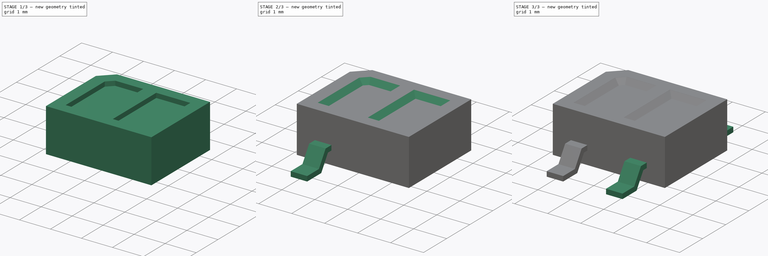
[diagram: build sequence overview — one tinted view per stage of 3, left to right]
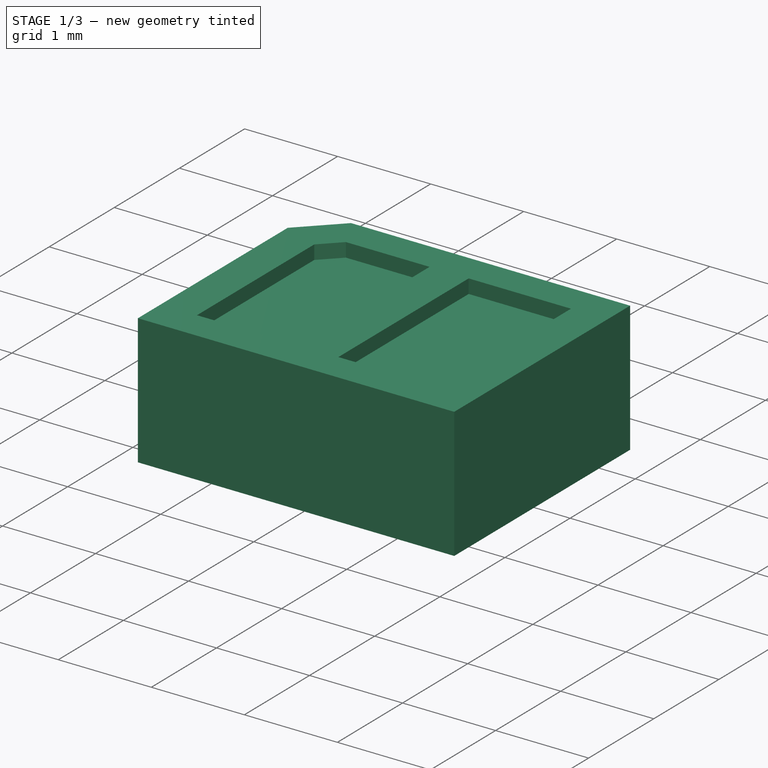
[diagram: stage 1 of 3 — iso view after this stage's code; geometry added in this stage tinted green]
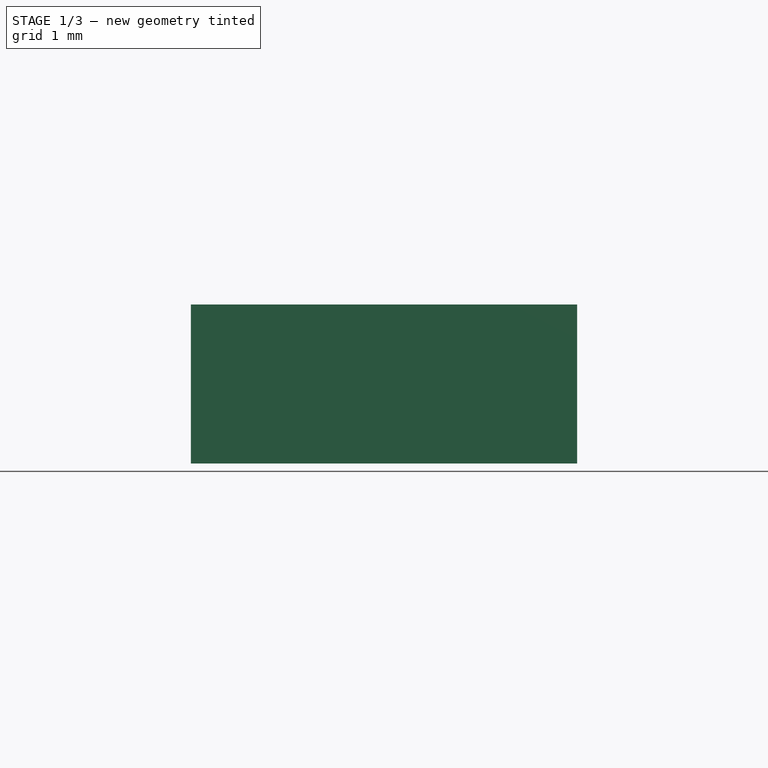
[diagram: stage 1 of 3 — front view after this stage's code; geometry added in this stage tinted green]
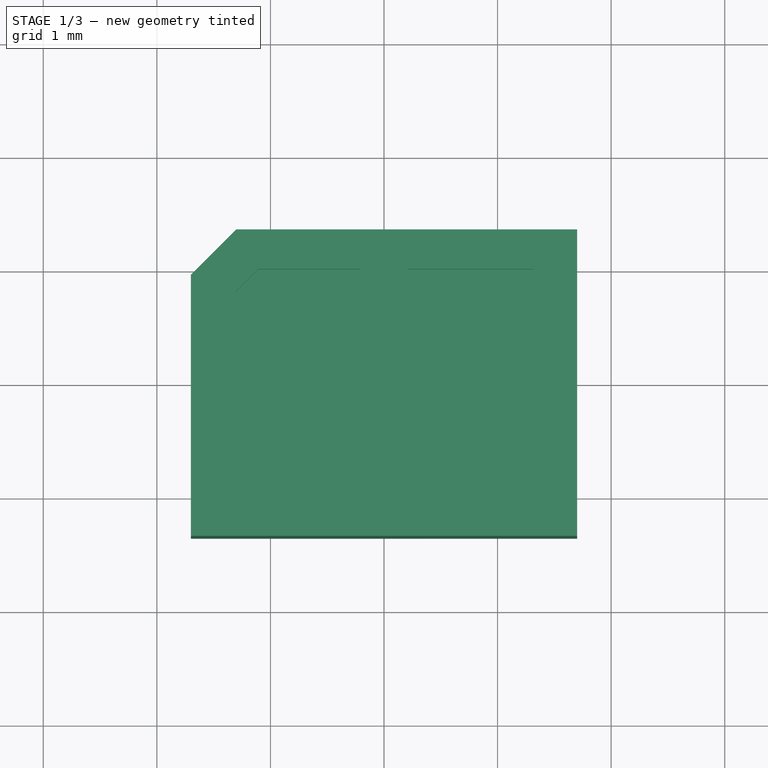
[diagram: stage 1 of 3 — top view after this stage's code; geometry added in this stage tinted green]
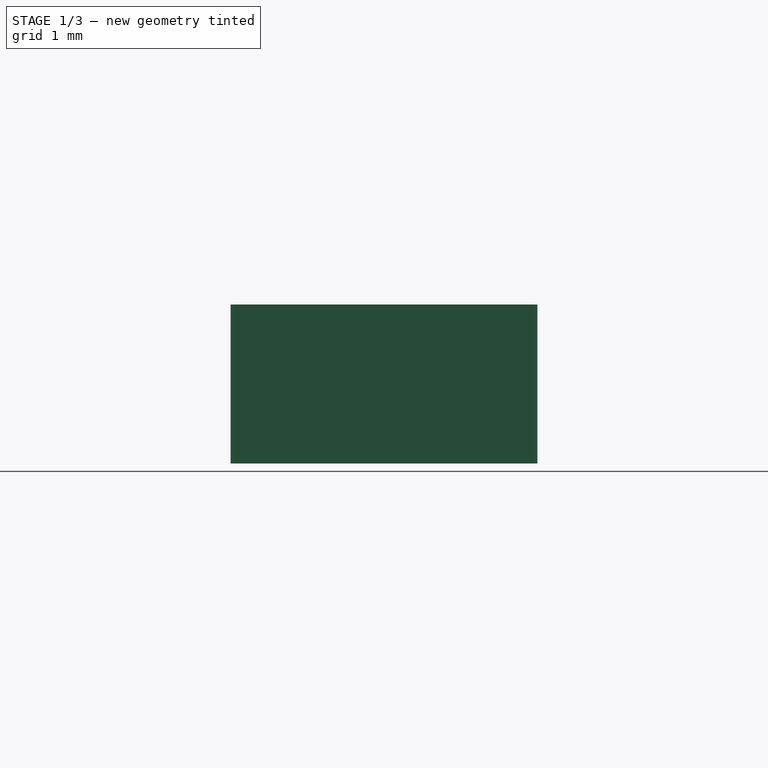
[diagram: stage 1 of 3 — right view after this stage's code; geometry added in this stage tinted green]
FCSTD DOCUMENT  (FreeCAD 0.16R6712 (Git))
Label: OnSemi_CASE100CY
License: All rights reserved
LicenseURL: http://en.wikipedia.org/wiki/All_rights_reserved
objects: Sketcher::SketchObject×4, PartDesign::Pad×3, Part::Feature×3, PartDesign::Pocket×1, PartDesign::Chamfer×1, Part::MultiFuse×1, App::DocumentObjectGroup×1
note: 17 computed .brp shape members not serialized (recipe doc carries the construction recipe); baked Part::Feature solids carry a one-line shape summary decoded from their .brp

FEATURE [Sketcher::SketchObject] Sketch
  Placement = pos=(0,0,0.45) rot=(0,0,1;0rad)
  sketch-geometry (7):
    g0: LineSegment StartX=-1.3 StartY=1.35 StartZ=0 EndX=1.7 EndY=1.35 EndZ=0
    g1: LineSegment StartX=1.7 StartY=1.35 StartZ=0 EndX=1.7 EndY=-1.35 EndZ=0
    g2: LineSegment StartX=1.7 StartY=-1.35 StartZ=0 EndX=-1.7 EndY=-1.35 EndZ=0
    g3: LineSegment StartX=-1.7 StartY=-1.35 StartZ=0 EndX=-1.7 EndY=0.95 EndZ=0
    g4: LineSegment StartX=-1.7 StartY=0.95 StartZ=0 EndX=-1.3 EndY=1.35 EndZ=0
    g5: LineSegment [constr] StartX=-1.7 StartY=0 StartZ=0 EndX=1.7 EndY=0 EndZ=0
    g6: LineSegment [constr] StartX=0 StartY=1.35 StartZ=0 EndX=0 EndY=-1.35 EndZ=0
  constraints (23):
    c: Coincident(g0,g1)
    c: Coincident(g1,g2)
    c: Coincident(g2,g3)
    c: Horizontal(g0)
    c: Horizontal(g2)
    c: Vertical(g1)
    c: Vertical(g3)
    c: PointOnObject(g4,g3)
    c: PointOnObject(g4,g0)
    c: Coincident(g0,g4)
    c: Coincident(g3,g4)
    c: Angle(g3,g4) = 2.35619
    c: DistanceX(g2,g2) = 3.4
    c: DistanceY(g1,g1) = 2.7
    c: DistanceY(g3,g0) = 0.4
    c: PointOnObject(g5,g1)
    c: Horizontal(g5)
    c: Vertical(g6)
    c: PointOnObject(g6,g2)
    c: Symmetric(g2,g2,g6)
    c: Symmetric(g1,g1,g5)
    c: Symmetric(g5,g5,g-1)
    c: Symmetric(g6,g6,g-1)
FEATURE [PartDesign::Pad] Pad
  Length = 1
  Length2 = 0.4
  Placement = pos=(0,0,0.45) rot=(0,0,1;0rad)
  Sketch = -> Sketch
  Type = 4
FEATURE [Sketcher::SketchObject] Sketch001
  ExternalGeometry = -> [Pad]
  Placement = pos=(0,0,1.45) rot=(0,0,1;0rad)
  Support = -> Pad [Face7]
  sketch-geometry (11):
    g0: LineSegment StartX=-1.31 StartY=-1 StartZ=0 EndX=-0.21 EndY=-1 EndZ=0
    g1: LineSegment StartX=-0.21 StartY=-1 StartZ=0 EndX=-0.21 EndY=1 EndZ=0
    g2: LineSegment StartX=-0.21 StartY=1 StartZ=0 EndX=-1.11 EndY=1 EndZ=0
    g3: LineSegment StartX=-1.31 StartY=0.8 StartZ=0 EndX=-1.31 EndY=-1 EndZ=0
    g4: LineSegment StartX=0.21 StartY=1 StartZ=0 EndX=1.31 EndY=1 EndZ=0
    g5: LineSegment StartX=1.31 StartY=1 StartZ=0 EndX=1.31 EndY=-1 EndZ=0
    g6: LineSegment StartX=1.31 StartY=-1 StartZ=0 EndX=0.21 EndY=-1 EndZ=0
    g7: LineSegment StartX=0.21 StartY=-1 StartZ=0 EndX=0.21 EndY=1 EndZ=0
    g8: LineSegment [constr] StartX=-0.21 StartY=0 StartZ=0 EndX=0.21 EndY=0 EndZ=0
    g9: LineSegment StartX=-1.31 StartY=0.8 StartZ=0 EndX=-1.11 EndY=1 EndZ=0
    g10: GeomPoint [constr] X=-0.76 Y=-1 Z=0
  constraints (35):
    c: Coincident(g0,g1)
    c: Coincident(g1,g2)
    c: Coincident(g3,g0)
    c: Horizontal(g0)
    c: Horizontal(g2)
    c: Vertical(g1)
    c: Vertical(g3)
    c: Coincident(g4,g5)
    c: Coincident(g5,g6)
    c: Coincident(g6,g7)
    c: Coincident(g7,g4)
    c: Horizontal(g4)
    c: Horizontal(g6)
    c: Vertical(g5)
    c: Vertical(g7)
    c: DistanceY(g0,g6) = 0
    c: Equal(g7,g1)
    c: Equal(g0,g6)
    c: PointOnObject(g8,g7)
    c: Horizontal(g8)
    c: PointOnObject(g8,g1)
    c: PointOnObject(g-1,g8)
    c: Symmetric(g8,g8,g-1)
    c: Symmetric(g1,g1,g8)
    c: DistanceY(g5,g5) = 2
    c: PointOnObject(g9,g3)
    c: PointOnObject(g9,g2)
    c: Angle(g2,g9) = 0.785398
    c: Coincident(g9,g2)
    c: Coincident(g3,g9)
    c: DistanceY(g3,g2) = 0.2
    c: DistanceX(g0,g0) = 1.1
    c: PointOnObject(g10,g0)
    c: Symmetric(g0,g0,g10)
    c: DistanceX(g-3,g10) = 0.94
FEATURE [PartDesign::Pocket] Pocket
  Length = 0.151
  Placement = pos=(0,0,0.45) rot=(0,0,1;0rad)
  Sketch = -> Sketch001
  Type = 0
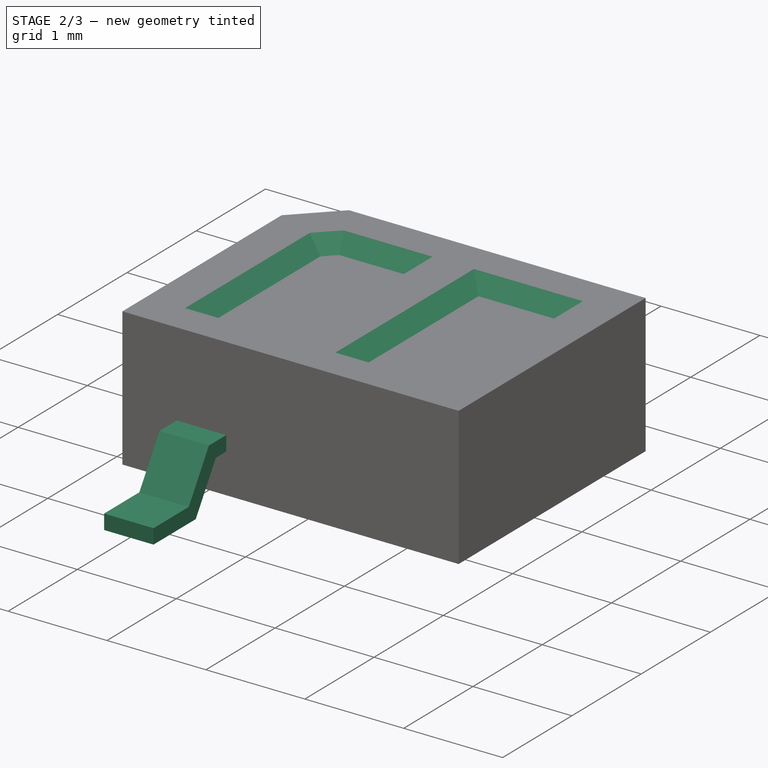
[diagram: stage 2 of 3 — iso view after this stage's code; geometry added in this stage tinted green]
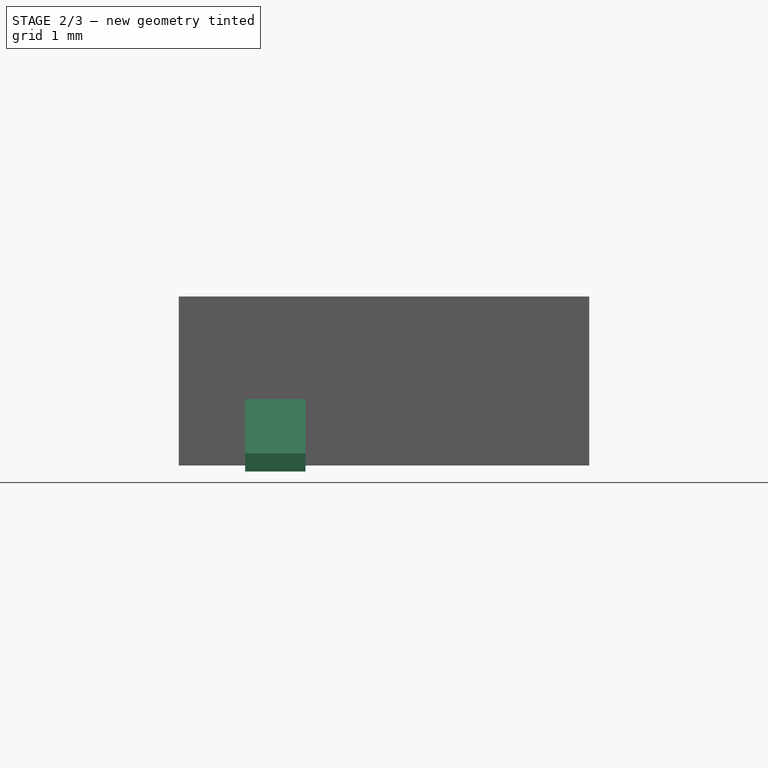
[diagram: stage 2 of 3 — front view after this stage's code; geometry added in this stage tinted green]
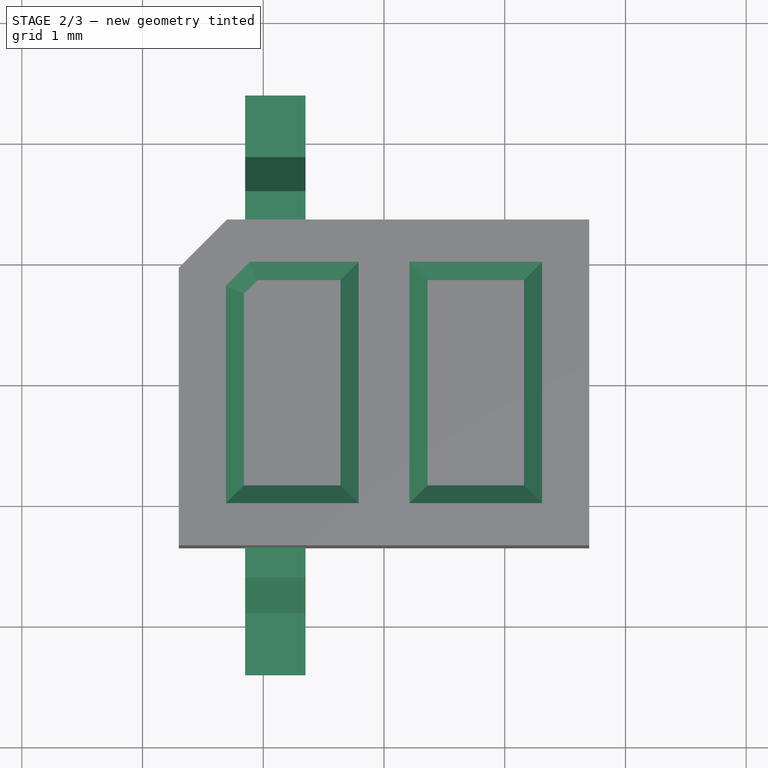
[diagram: stage 2 of 3 — top view after this stage's code; geometry added in this stage tinted green]
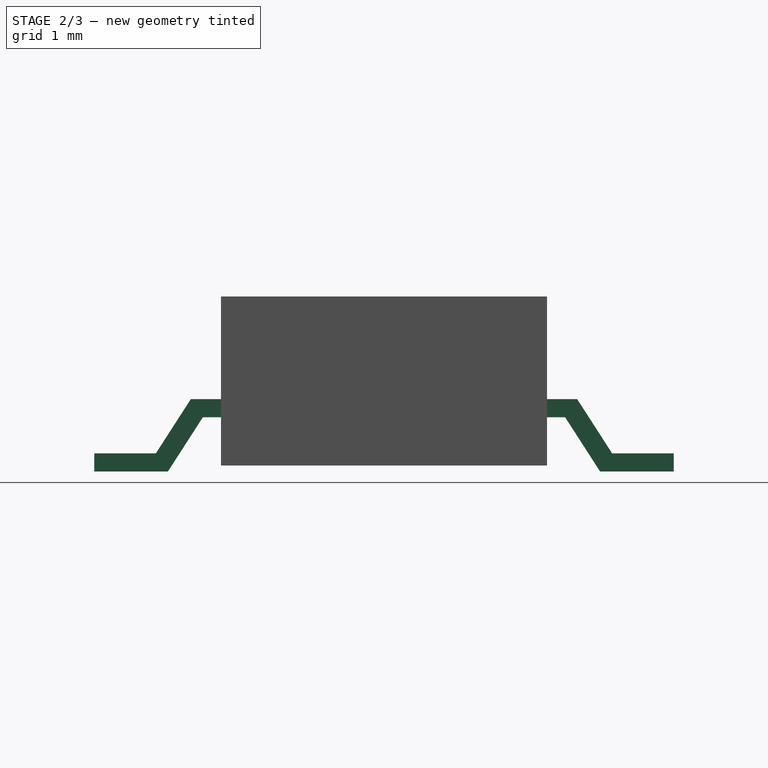
[diagram: stage 2 of 3 — right view after this stage's code; geometry added in this stage tinted green]
FEATURE [Sketcher::SketchObject] Sketch003
  Placement = pos=(-0.9,0,0) rot=(0.57735,0.57735,0.57735;2.0944rad)
  sketch-geometry (14):
    g0: LineSegment StartX=-2.4 StartY=0 StartZ=0 EndX=-1.79 EndY=0 EndZ=0
    g1: LineSegment StartX=-1.79 StartY=0 StartZ=0 EndX=-1.5 EndY=0.45 EndZ=0
    g2: LineSegment StartX=-1.5 StartY=0.45 StartZ=0 EndX=1.5 EndY=0.45 EndZ=0
    g3: LineSegment StartX=1.5 StartY=0.45 StartZ=0 EndX=1.79 EndY=0 EndZ=0
    g4: LineSegment StartX=1.79 StartY=0 StartZ=0 EndX=2.4 EndY=0 EndZ=0
    g5: LineSegment [constr] StartX=-1.79 StartY=0 StartZ=0 EndX=1.79 EndY=0 EndZ=0
    g6: GeomPoint [constr] X=0 Y=0.45 Z=0
    g7: LineSegment StartX=-2.4 StartY=0 StartZ=0 EndX=-2.4 EndY=0.15 EndZ=0
    g8: LineSegment StartX=-2.4 StartY=0.15 StartZ=0 EndX=-1.89 EndY=0.15 EndZ=0
    g9: LineSegment StartX=-1.89 StartY=0.15 StartZ=0 EndX=-1.6 EndY=0.6 EndZ=0
    g10: LineSegment StartX=-1.6 StartY=0.6 StartZ=0 EndX=1.6 EndY=0.6 EndZ=0
    g11: LineSegment StartX=1.6 StartY=0.6 StartZ=0 EndX=1.89 EndY=0.15 EndZ=0
    g12: LineSegment StartX=1.89 StartY=0.15 StartZ=0 EndX=2.4 EndY=0.15 EndZ=0
    g13: LineSegment StartX=2.4 StartY=0.15 StartZ=0 EndX=2.4 EndY=0 EndZ=0
  constraints (40):
    c: PointOnObject(g0,g-1)
    c: PointOnObject(g0,g-1)
    c: Coincident(g1,g0)
    c: Coincident(g2,g1)
    c: Horizontal(g2)
    c: Coincident(g3,g2)
    c: PointOnObject(g3,g-1)
    c: Coincident(g4,g3)
    c: PointOnObject(g4,g-1)
    c: Equal(g4,g0)
    c: DistanceY(g4,g2) = 0.45
    c: DistanceX(g0,g4) = 4.8
    c: DistanceX(g0,g0) = 0.61
    c: DistanceX(g0,g1) = 0.9
    c: Coincident(g5,g0)
    c: Coincident(g5,g3)
    c: Symmetric(g5,g5,g-1)
    c: PointOnObject(g6,g2)
    c: PointOnObject(g6,g-2)
    c: Symmetric(g2,g2,g6)
    c: Coincident(g7,g0)
    c: Vertical(g7)
    c: Coincident(g8,g7)
    c: Horizontal(g8)
    c: Coincident(g9,g8)
    c: Horizontal(g10)
    c: Coincident(g11,g10)
    c: Coincident(g12,g11)
    c: Horizontal(g12)
    c: Coincident(g13,g12)
    c: Coincident(g13,g4)
    c: Vertical(g13)
    c: Coincident(g9,g10)
    c: DistanceY(g1,g9) = 0.15
    c: DistanceY(g0,g8) = 0.15
    c: DistanceX(g9,g1) = 0.1
    c: Parallel(g9,g1)
    c: Parallel(g11,g3)
    c: DistanceX(g2,g10) = 0.1
    c: Equal(g13,g7)
FEATURE [PartDesign::Pad] Pad002
  Length = 0.5
  Length2 = 100
  Midplane = true
  Placement = pos=(-0.9,0,0) rot=(0.57735,0.57735,0.57735;2.0944rad)
  Sketch = -> Sketch003
  Type = 0
FEATURE [PartDesign::Chamfer] Chamfer
  Base = -> Pocket [Edge33,Edge30,Edge34,Edge36,Edge42,Edge26,Edge28,Edge39,Edge41]
  Placement = pos=(0,0,0.45) rot=(0,0,1;0rad)
  Size = 0.1499
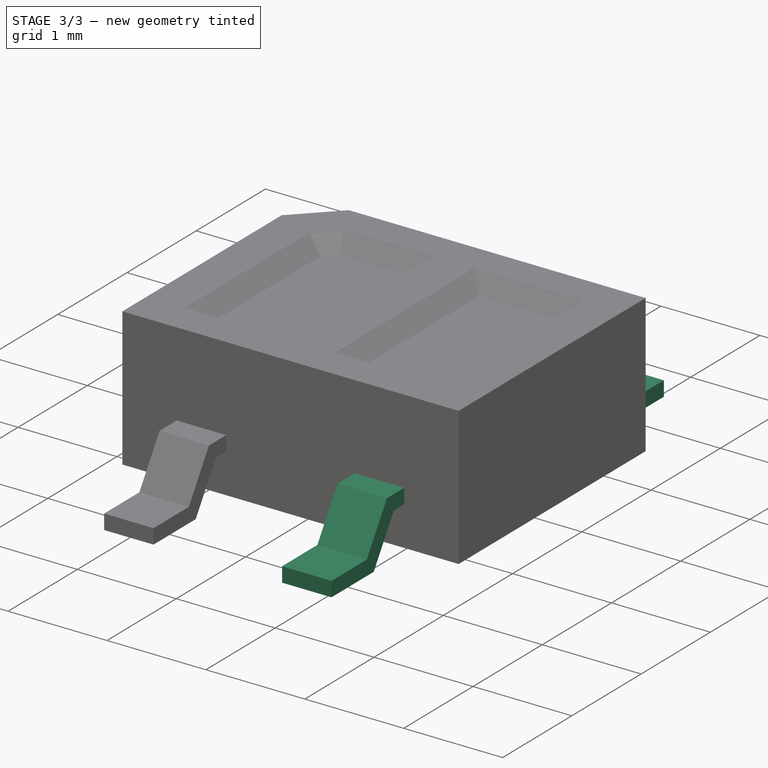
[diagram: stage 3 of 3 — iso view after this stage's code; geometry added in this stage tinted green]
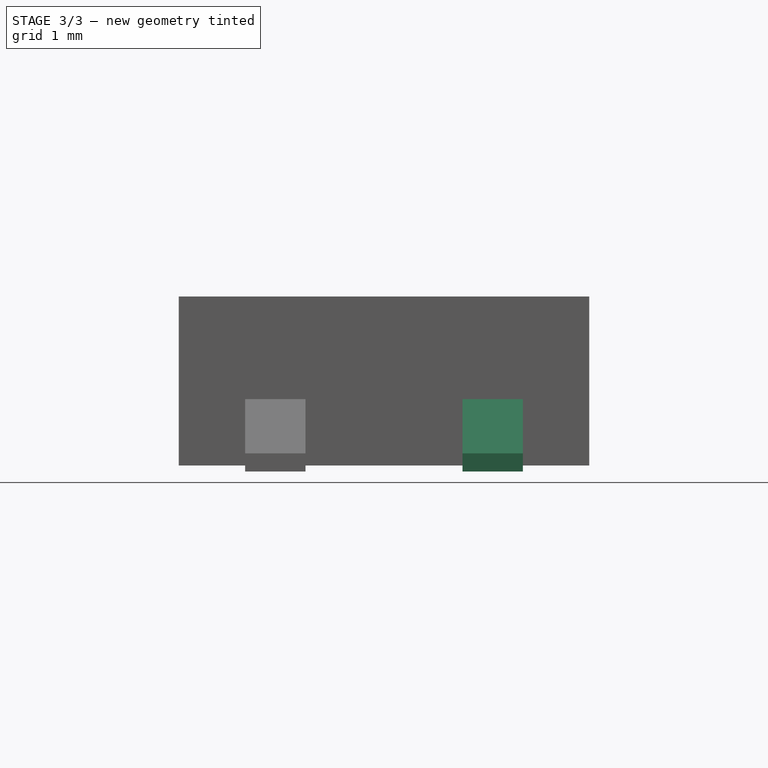
[diagram: stage 3 of 3 — front view after this stage's code; geometry added in this stage tinted green]
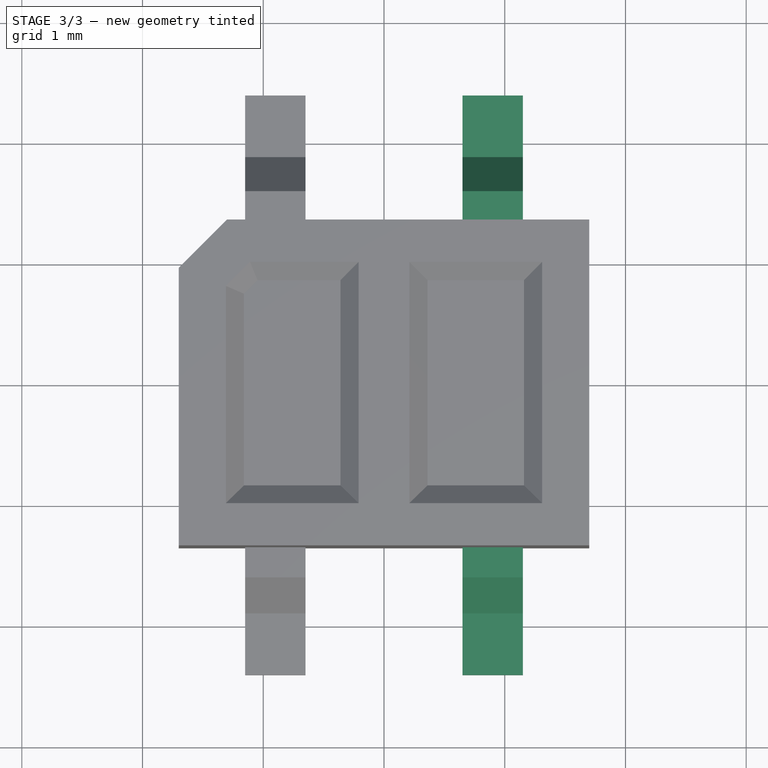
[diagram: stage 3 of 3 — top view after this stage's code; geometry added in this stage tinted green]
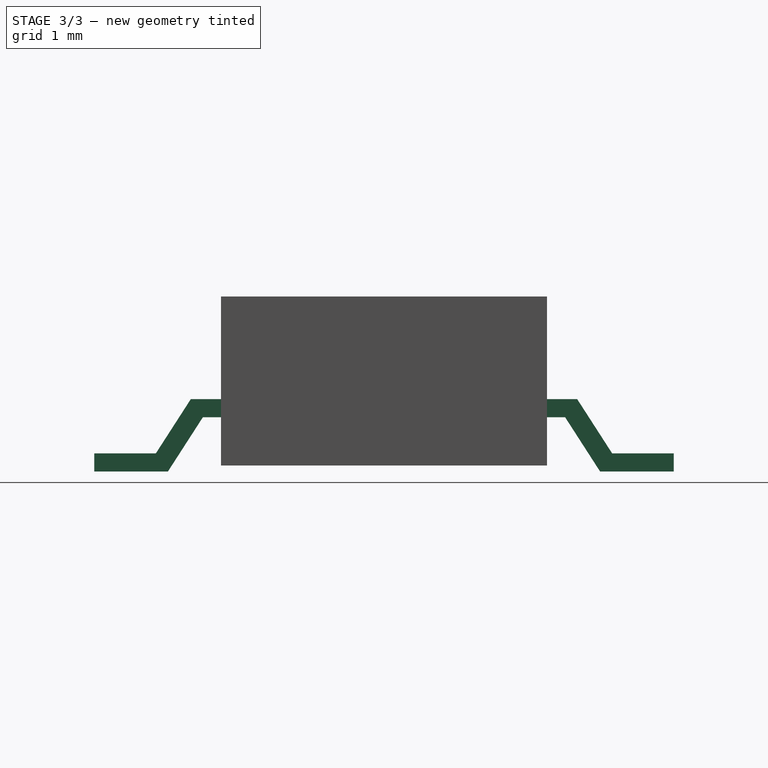
[diagram: stage 3 of 3 — right view after this stage's code; geometry added in this stage tinted green]
FEATURE [Sketcher::SketchObject] Sketch002
  Placement = pos=(0.9,0,0) rot=(0.57735,0.57735,0.57735;2.0944rad)
  sketch-geometry (14):
    g0: LineSegment StartX=-2.4 StartY=0 StartZ=0 EndX=-1.79 EndY=0 EndZ=0
    g1: LineSegment StartX=-1.79 StartY=0 StartZ=0 EndX=-1.5 EndY=0.45 EndZ=0
    g2: LineSegment StartX=-1.5 StartY=0.45 StartZ=0 EndX=1.5 EndY=0.45 EndZ=0
    g3: LineSegment StartX=1.5 StartY=0.45 StartZ=0 EndX=1.79 EndY=0 EndZ=0
    g4: LineSegment StartX=1.79 StartY=0 StartZ=0 EndX=2.4 EndY=0 EndZ=0
    g5: LineSegment [constr] StartX=-1.79 StartY=0 StartZ=0 EndX=1.79 EndY=0 EndZ=0
    g6: GeomPoint [constr] X=0 Y=0.45 Z=0
    g7: LineSegment StartX=-2.4 StartY=0 StartZ=0 EndX=-2.4 EndY=0.15 EndZ=0
    g8: LineSegment StartX=-2.4 StartY=0.15 StartZ=0 EndX=-1.89 EndY=0.15 EndZ=0
    g9: LineSegment StartX=-1.89 StartY=0.15 StartZ=0 EndX=-1.6 EndY=0.6 EndZ=0
    g10: LineSegment StartX=-1.6 StartY=0.6 StartZ=0 EndX=1.6 EndY=0.6 EndZ=0
    g11: LineSegment StartX=1.6 StartY=0.6 StartZ=0 EndX=1.89 EndY=0.15 EndZ=0
    g12: LineSegment StartX=1.89 StartY=0.15 StartZ=0 EndX=2.4 EndY=0.15 EndZ=0
    g13: LineSegment StartX=2.4 StartY=0.15 StartZ=0 EndX=2.4 EndY=0 EndZ=0
  constraints (40):
    c: PointOnObject(g0,g-1)
    c: PointOnObject(g0,g-1)
    c: Coincident(g1,g0)
    c: Coincident(g2,g1)
    c: Horizontal(g2)
    c: Coincident(g3,g2)
    c: PointOnObject(g3,g-1)
    c: Coincident(g4,g3)
    c: PointOnObject(g4,g-1)
    c: Equal(g4,g0)
    c: DistanceY(g4,g2) = 0.45
    c: DistanceX(g0,g4) = 4.8
    c: DistanceX(g0,g0) = 0.61
    c: DistanceX(g0,g1) = 0.9
    c: Coincident(g5,g0)
    c: Coincident(g5,g3)
    c: Symmetric(g5,g5,g-1)
    c: PointOnObject(g6,g2)
    c: PointOnObject(g6,g-2)
    c: Symmetric(g2,g2,g6)
    c: Coincident(g7,g0)
    c: Vertical(g7)
    c: Coincident(g8,g7)
    c: Horizontal(g8)
    c: Coincident(g9,g8)
    c: Horizontal(g10)
    c: Coincident(g11,g10)
    c: Coincident(g12,g11)
    c: Horizontal(g12)
    c: Coincident(g13,g12)
    c: Coincident(g13,g4)
    c: Vertical(g13)
    c: Coincident(g9,g10)
    c: DistanceY(g1,g9) = 0.15
    c: DistanceY(g0,g8) = 0.15
    c: DistanceX(g9,g1) = 0.1
    c: Parallel(g9,g1)
    c: Parallel(g11,g3)
    c: DistanceX(g2,g10) = 0.1
    c: Equal(g13,g7)
FEATURE [PartDesign::Pad] Pad001
  Length = 0.5
  Length2 = 100
  Midplane = true
  Placement = pos=(0.9,0,0) rot=(0.57735,0.57735,0.57735;2.0944rad)
  Reversed = true
  Sketch = -> Sketch002
  Type = 0
FEATURE [Part::MultiFuse] Pad001_mp_cp  label="OnSemi_CASE100CY"
  Shapes = -> [Pad001,Pad002,Chamfer]
FEATURE [Part::Feature] FusionAxisZ1  label="Z"
  shape: bbox 0.8 x 0.8 x 14 mm, 8 faces (baked)
FEATURE [Part::Feature] FusionAxisY1  label="Y"
  Placement = pos=(0,0,0.05) rot=(-1,0,0;1.5708rad)
  shape: bbox 0.8 x 14 x 0.8 mm, 8 faces (baked)
FEATURE [Part::Feature] FusionAxisX1  label="X"
  Placement = pos=(0,-0.05,0) rot=(0,1,0;1.5708rad)
  shape: bbox 14 x 0.8 x 0.8 mm, 8 faces (baked)
FEATURE [App::DocumentObjectGroup] axis
  Group = -> [FusionAxisZ1,FusionAxisY1,FusionAxisX1]
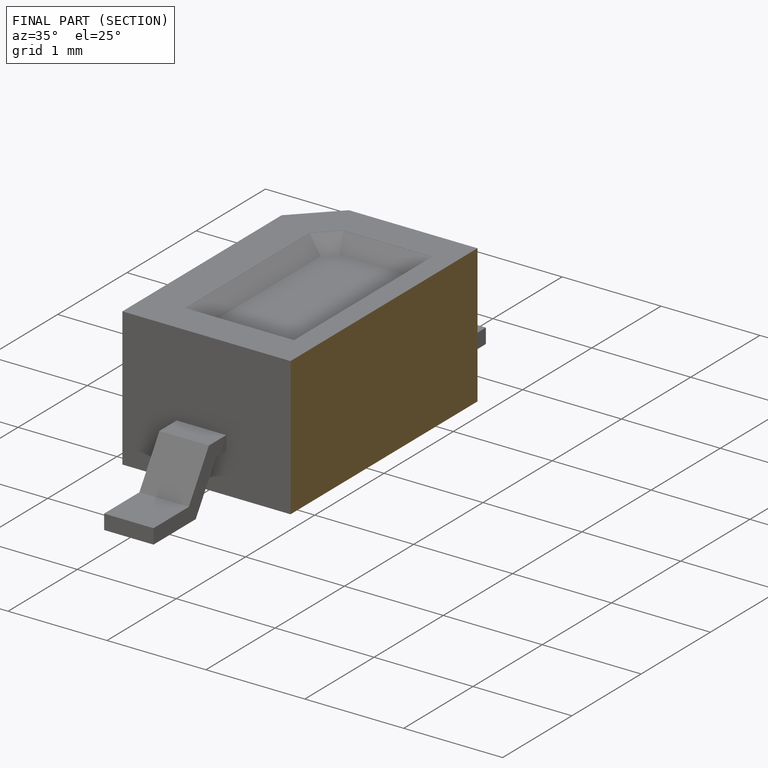
[diagram: finished part — half-section view (interior)]
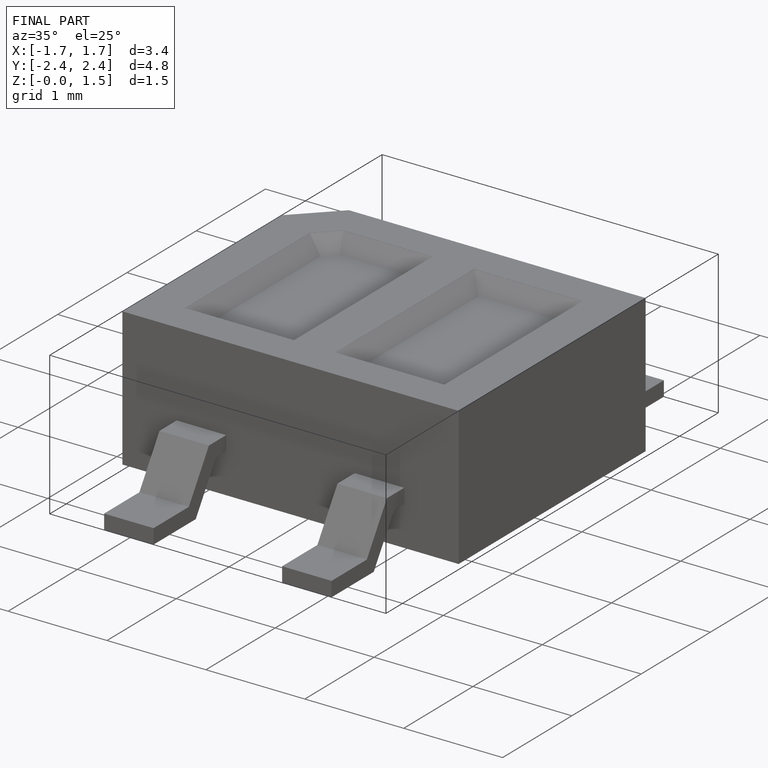
[diagram: finished part — iso view with bounding-box wireframe]
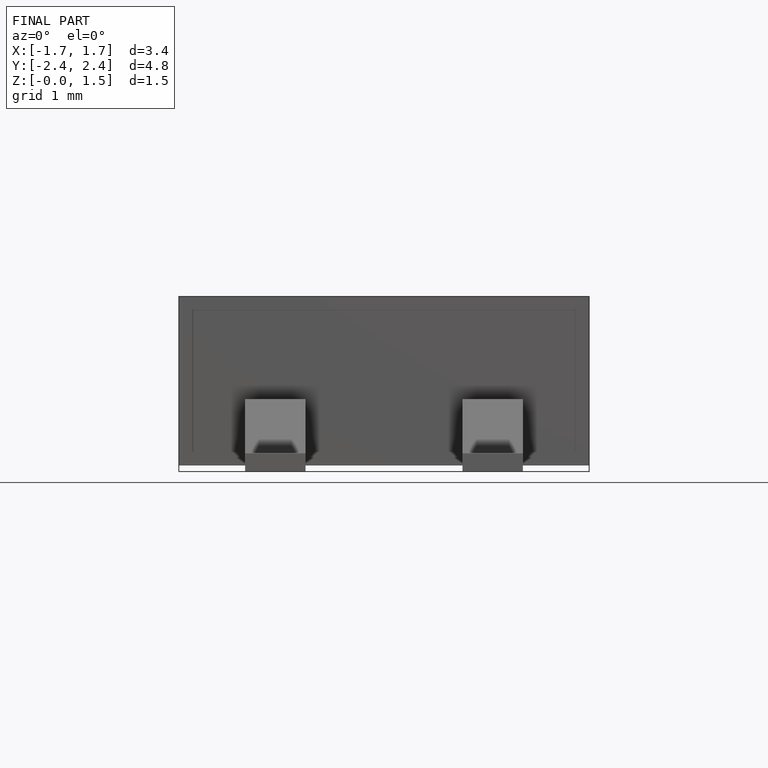
[diagram: finished part — front view with bounding-box wireframe]
